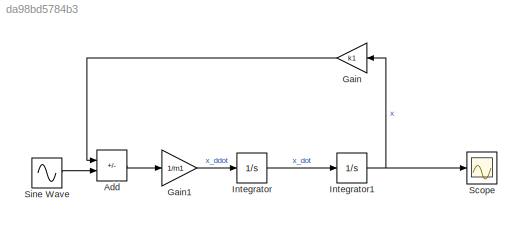
MODEL slx_da98bd5784b3
KIND model
CONFIG AbsTol = auto
CONFIG EnableMultiTasking = off
CONFIG FixedStep = auto
CONFIG MaxStep = auto
CONFIG MinStep = auto
CONFIG RelTol = 1e-3
CONFIG SampleTimeConstraint = Unconstrained
CONFIG SolverName = VariableStepAuto
CONFIG StartTime = 0.0
CONFIG StopTime = 10.0
BLOCK [Sum] Add
  IconShape = rectangular
  Inputs = -+
BLOCK [Gain] Gain
  Gain = k1
  NameLocation = top
BLOCK [Gain] Gain1
  Gain = 1/m1
BLOCK [Integrator] Integrator
BLOCK [Integrator] Integrator1
BLOCK [Scope] Scope
  Floating = off
  NumInputPorts = 1
  ScopeSpecificationString = Simulink.scopes.TimeScopeBlockCfg('CurrentConfiguration', extmgr.ConfigurationSet(extmgr.Configuration('Core','General UI',true),extmgr.Configuration('Core','Source UI',true),extmgr.Configuration('Sources','WiredSimulink',true),extmgr.Configuration('Visuals','Time Domain',true,'SerializedDisplays',{struct('MinYLimReal','-1.17816','MaxYLimReal','1.18012','YLabelReal','','MinYLimMag','0.00000','MaxY...<+1381ch>
BLOCK [Sin] Sine Wave
  Amplitude = F_amp
  Frequency = w
  SampleTime = 0
LINE Add:1 -> Gain1:1
LINE Gain1:1 -> Integrator:1
LINE Gain:1 -> Add:1
NET Integrator1:1 -> Gain:1, Scope:1
LINE Integrator:1 -> Integrator1:1
LINE Sine Wave:1 -> Add:2
note: NET lines group one-source signal fan-out (src -> all destinations, sorted); 1:1 wires keep LINE
